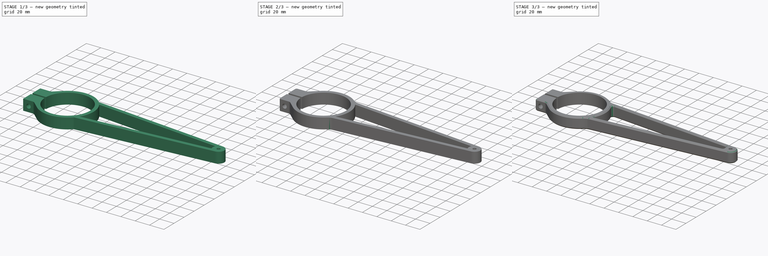
[diagram: build sequence overview — one tinted view per stage of 3, left to right]
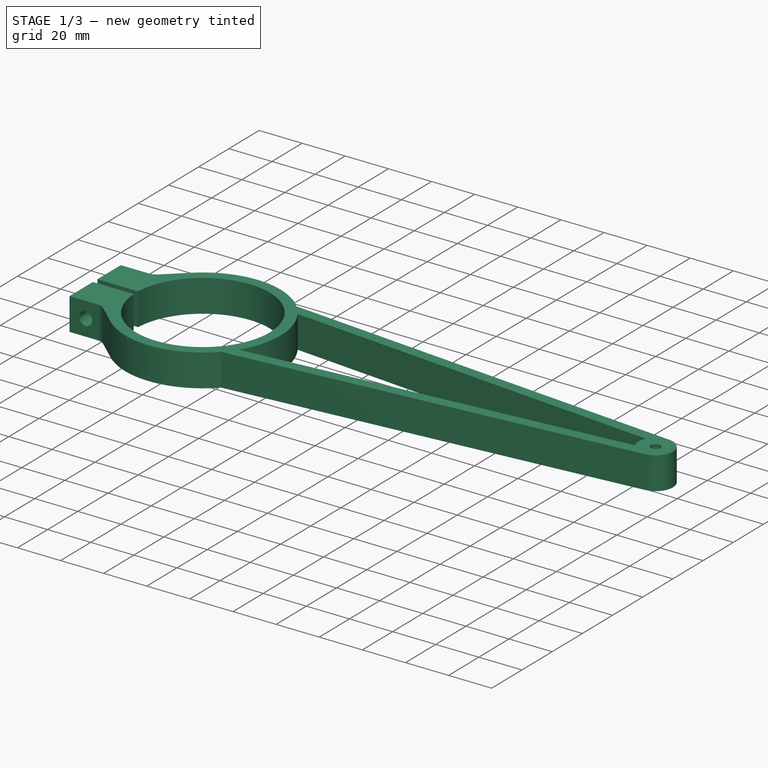
[diagram: stage 1 of 3 — iso view after this stage's code; geometry added in this stage tinted green]
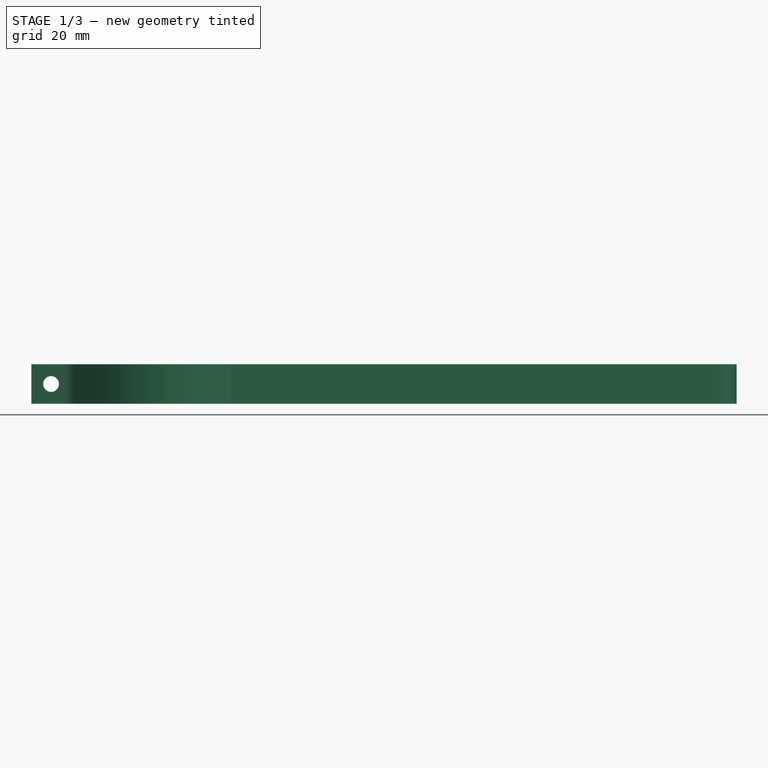
[diagram: stage 1 of 3 — front view after this stage's code; geometry added in this stage tinted green]
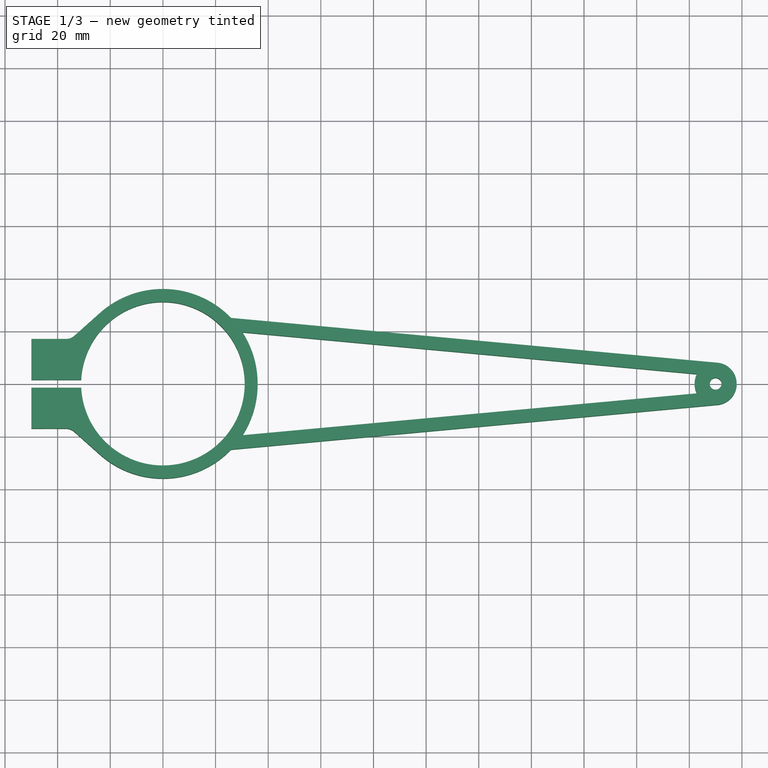
[diagram: stage 1 of 3 — top view after this stage's code; geometry added in this stage tinted green]
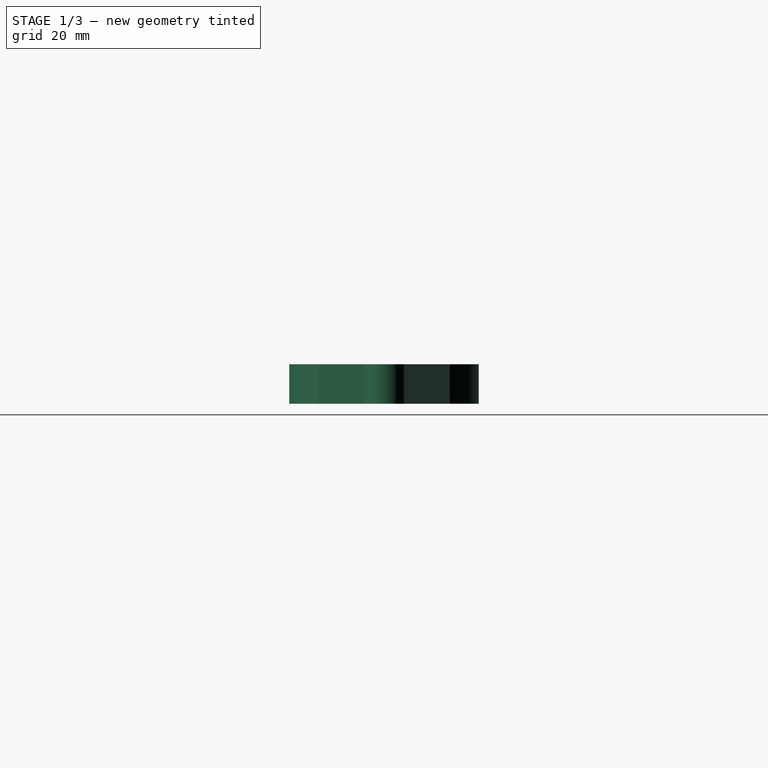
[diagram: stage 1 of 3 — right view after this stage's code; geometry added in this stage tinted green]
FCSTD DOCUMENT  (FreeCAD 0.18R16146 (Git))
Label: vp4003
License: All rights reserved
LicenseURL: http://en.wikipedia.org/wiki/All_rights_reserved
objects: PartDesign::Fillet×5, Sketcher::SketchObject×2, PartDesign::Pad×1, PartDesign::Hole×1, PartDesign::Chamfer×1, PartDesign::Body×1
note: 13 computed .brp shape members not serialized (recipe doc carries the construction recipe); baked Part::Feature solids carry a one-line shape summary decoded from their .brp

FEATURE [Sketcher::SketchObject] Sketch
  MapMode = 5
  Support = -> [XY_Plane]
  sketch-geometry (19):
    g0: ArcOfCircle CenterX=0 CenterY=0 CenterZ=0 NormalX=0 NormalY=0 NormalZ=1 AngleXU=0 Radius=31.075 StartAngle=3.18988 EndAngle=9.37649
    g1: ArcOfCircle CenterX=0 CenterY=0 CenterZ=0 NormalX=0 NormalY=0 NormalZ=1 AngleXU=0 Radius=36 StartAngle=0.767648 EndAngle=2.30023
    g2: ArcOfCircle CenterX=210 CenterY=0 CenterZ=0 NormalX=0 NormalY=0 NormalZ=1 AngleXU=0 Radius=8 StartAngle=2.6653 EndAngle=3.61789
    g3: LineSegment StartX=25.9037 StartY=25 StartZ=0 EndX=210.734 EndY=7.96624 EndZ=0
    g4: LineSegment StartX=25.9037 StartY=-25 StartZ=0 EndX=210.734 EndY=-7.96624 EndZ=0
    g5: LineSegment StartX=30.2083 StartY=19.5821 StartZ=0 EndX=202.89 EndY=3.66792 EndZ=0
    g6: LineSegment StartX=202.89 StartY=-3.66792 StartZ=0 EndX=30.2083 EndY=-19.5821 EndZ=0
    g7: Circle CenterX=210 CenterY=0 CenterZ=0 NormalX=0 NormalY=0 NormalZ=1 AngleXU=0 Radius=2.25
    g8: ArcOfCircle CenterX=210 CenterY=0 CenterZ=0 NormalX=0 NormalY=0 NormalZ=1 AngleXU=0 Radius=8 StartAngle=4.80429 EndAngle=7.76208
    g9: ArcOfCircle CenterX=0 CenterY=0 CenterZ=0 NormalX=0 NormalY=0 NormalZ=1 AngleXU=0 Radius=36 StartAngle=5.70805 EndAngle=6.85832
    g10: LineSegment StartX=-50 StartY=17 StartZ=0 EndX=-50 EndY=1.5 EndZ=0
    g11: ArcOfCircle CenterX=0 CenterY=0 CenterZ=0 NormalX=0 NormalY=0 NormalZ=1 AngleXU=0 Radius=36 StartAngle=3.98296 EndAngle=5.51554
    g12: LineSegment StartX=-50 StartY=1.5 StartZ=0 EndX=-31.0388 EndY=1.5 EndZ=0
    g13: LineSegment StartX=-50 StartY=-1.5 StartZ=0 EndX=-31.0388 EndY=-1.5 EndZ=0
    g14: LineSegment StartX=-50 StartY=-1.5 StartZ=0 EndX=-50 EndY=-17 EndZ=0
    g15: LineSegment StartX=-35 StartY=17 StartZ=0 EndX=-23.992 EndY=26.8399 EndZ=0
    g16: LineSegment StartX=-35 StartY=17 StartZ=0 EndX=-50 EndY=17 EndZ=0
    g17: LineSegment StartX=-23.992 StartY=-26.8399 StartZ=0 EndX=-35 EndY=-17 EndZ=0
    g18: LineSegment StartX=-35 StartY=-17 StartZ=0 EndX=-50 EndY=-17 EndZ=0
  constraints (54):
    c: Coincident(g0,g-1)
    c: Coincident(g1,g0)
    c: PointOnObject(g2,g-1)
    c: DistanceX(g0,g2) = 210
    c: Parallel(g5,g3)
    c: Parallel(g6,g4)
    c: Coincident(g7,g2)
    c: Diameter(g2) = 16
    c: Tangent(g3,g2)
    c: Tangent(g4,g2)
    c: Diameter(g7) = 4.5
    c: Coincident(g2,g5)
    c: Coincident(g8,g3)
    c: Equal(g2,g8)
    c: Coincident(g2,g6)
    c: Coincident(g8,g4)
    c: Coincident(g2,g8)
    c: Distance(g2,g3) = 5
    c: Distance(g2,g4) = 5
    c: Coincident(g1,g3)
    c: Coincident(g9,g0)
    c: Coincident(g9,g6)
    c: Coincident(g9,g5)
    c: Diameter(g0) = 62.15
    c: Diameter(g1) = 72
    c: Equal(g9,g1)
    c: Coincident(g11,g4) = -1.5708
    c: Vertical(g10)
    c: Coincident(g1,g11)
    c: Equal(g11,g9)
    c: Equal(g3,g4)
    c: Horizontal(g12)
    c: Horizontal(g13)
    c: Coincident(g10,g12)
    c: Coincident(g14,g13)
    c: Tangent(g10,g14)
    c: Coincident(g0,g13)
    c: Coincident(g0,g12)
    c: DistanceY(g0,g10) = 1.5
    c: Coincident(g16,g15)
    c: Coincident(g16,g10)
    c: Tangent(g15,g1) = 1.5708
    c: DistanceX(g10,g0) = 50
    c: Horizontal(g16)
    c: DistanceX(g15,g0) = 35
    c: DistanceY(g0,g10) = 17
    c: Coincident(g18,g17)
    c: Coincident(g18,g14)
    c: Horizontal(g18)
    c: Tangent(g17,g11) = 1.5708
    c: Equal(g15,g17)
    c: Equal(g10,g14)
    c: DistanceY(g13,g10) = 3
    c: DistanceY(g4,g1) = 50
FEATURE [PartDesign::Pad] Pad
  Length = 15
  Length2 = 100
  Profile = -> Sketch
  Type = 0
FEATURE [Sketcher::SketchObject] Sketch001
  MapMode = 5
  Placement = pos=(0,-17,0) rot=(1,0,0;1.5708rad)
  Support = -> [Pad]
  sketch-geometry (1):
    g0: Circle CenterX=-42.5 CenterY=7.5 CenterZ=0 NormalX=0 NormalY=0 NormalZ=1 AngleXU=0 Radius=2.5
  constraints (3):
    c: Radius(g0) = 2.5
    c: DistanceY(g-1,g0) = 7.5
    c: DistanceX(g0,g-1) = 42.5
FEATURE [PartDesign::Hole] Hole
  BaseFeature = -> Pad
  Depth = 25
  DepthType = 1
  Diameter = 6
  DrillPoint = 1
  DrillPointAngle = 118
  HoleCutCountersinkAngle = 90
  HoleCutDepth = 0
  HoleCutDiameter = 0
  HoleCutType = 0
  ModelActualThread = false
  Profile = -> Sketch001
  Tapered = false
  TaperedAngle = 90
  ThreadAngle = 0
  ThreadClass = 0
  ThreadCutOffInner = 0
  ThreadCutOffOuter = 0
  ThreadDirection = 0
  ThreadFit = 0
  ThreadPitch = 0
  ThreadSize = 0
  ThreadType = 0
  Threaded = false
FEATURE [PartDesign::Fillet] Fillet
  Base = -> Hole [Edge46,Edge50]
  BaseFeature = -> Hole
  Radius = 5
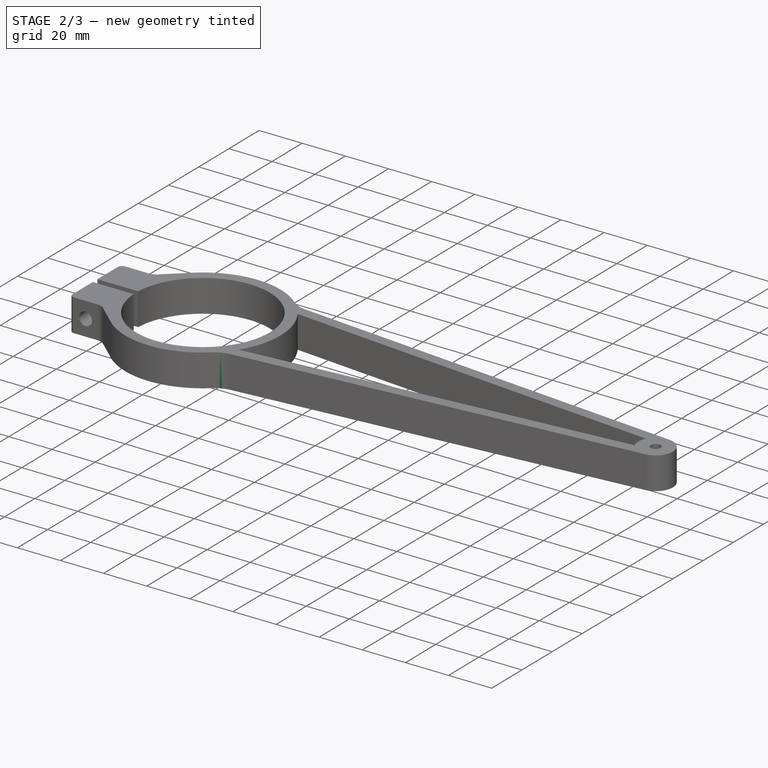
[diagram: stage 2 of 3 — iso view after this stage's code; geometry added in this stage tinted green]
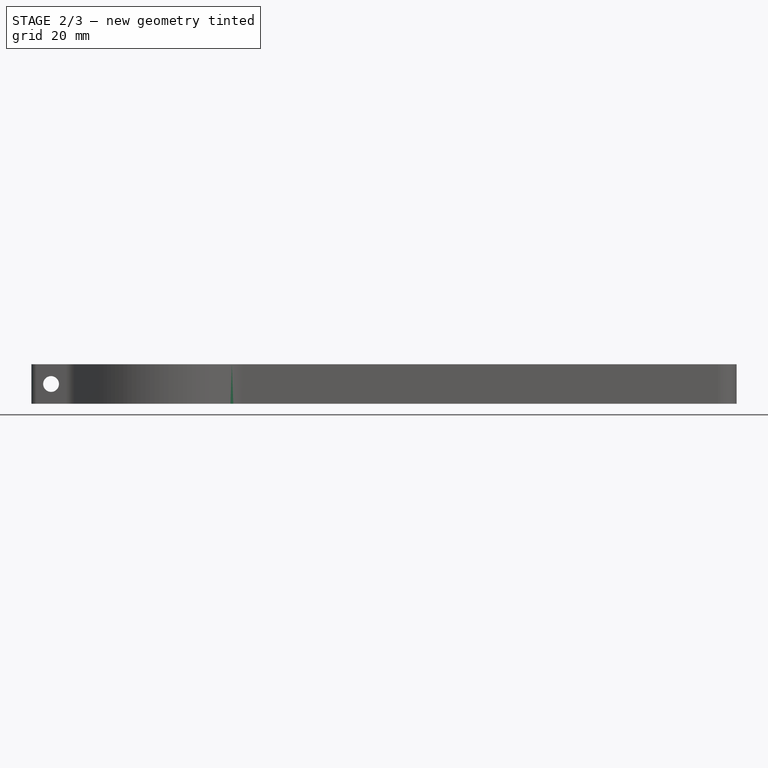
[diagram: stage 2 of 3 — front view after this stage's code; geometry added in this stage tinted green]
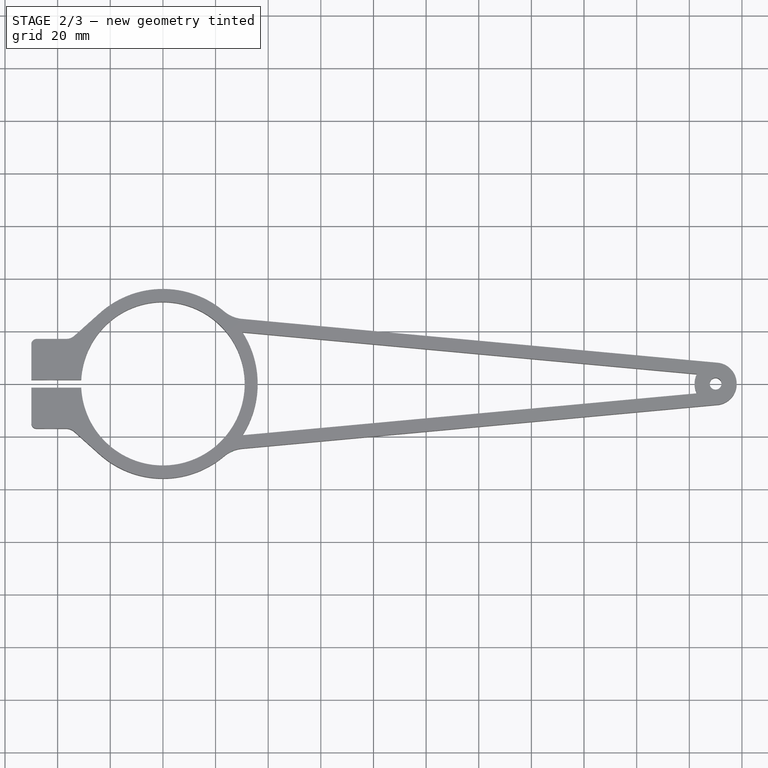
[diagram: stage 2 of 3 — top view after this stage's code; geometry added in this stage tinted green]
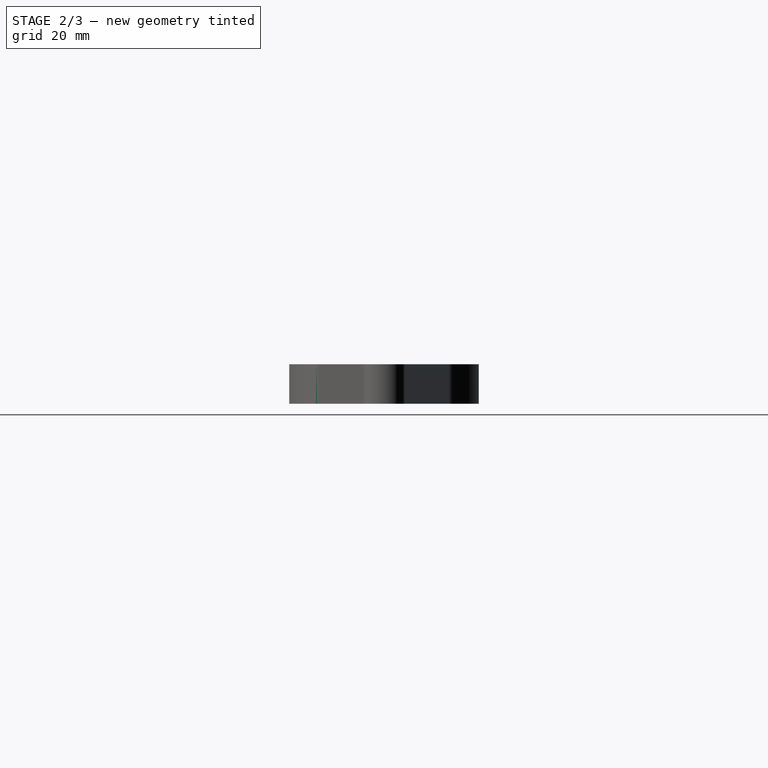
[diagram: stage 2 of 3 — right view after this stage's code; geometry added in this stage tinted green]
FEATURE [PartDesign::Fillet] Fillet001
  Base = -> Fillet [Edge23,Edge46]
  BaseFeature = -> Fillet
  Radius = 2
FEATURE [PartDesign::Fillet] Fillet002
  Base = -> Fillet001 [Edge52,Edge39]
  BaseFeature = -> Fillet001
  Radius = 12.5
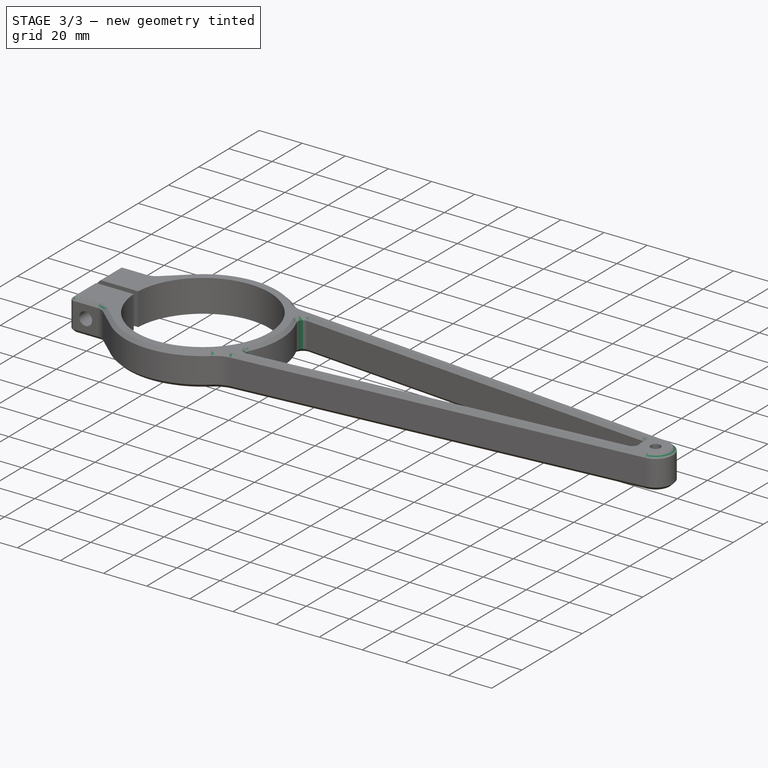
[diagram: stage 3 of 3 — iso view after this stage's code; geometry added in this stage tinted green]
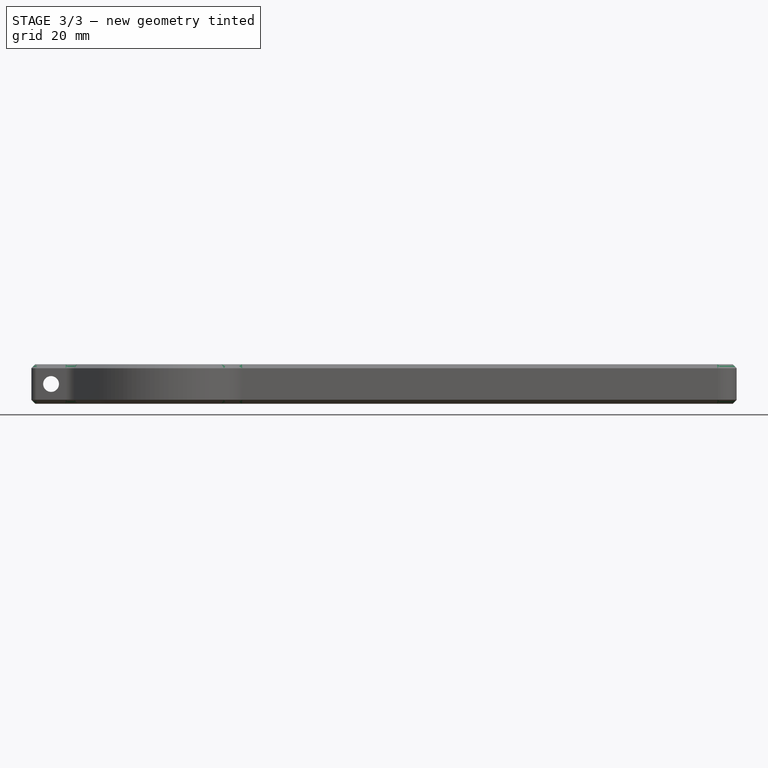
[diagram: stage 3 of 3 — front view after this stage's code; geometry added in this stage tinted green]
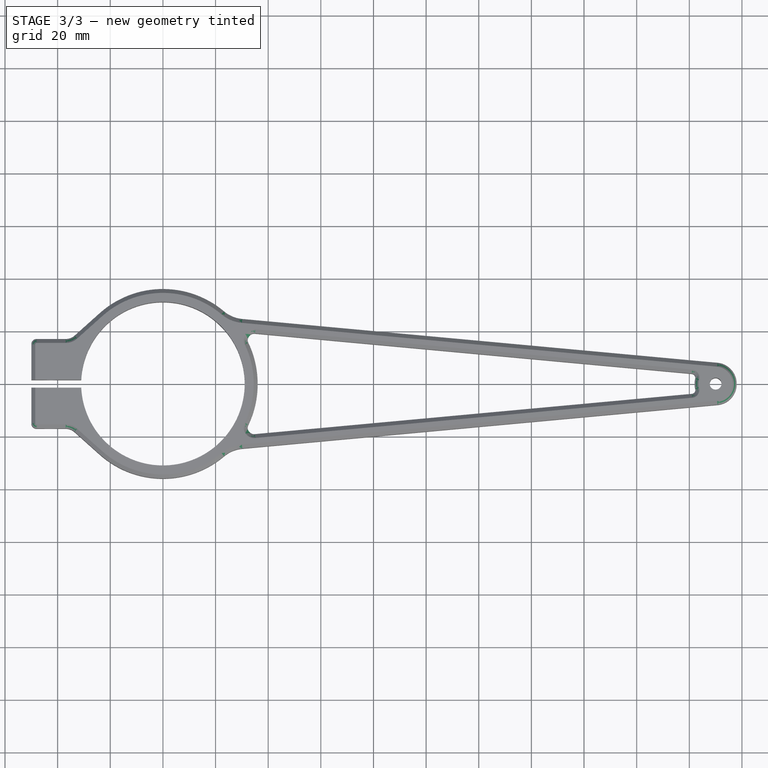
[diagram: stage 3 of 3 — top view after this stage's code; geometry added in this stage tinted green]
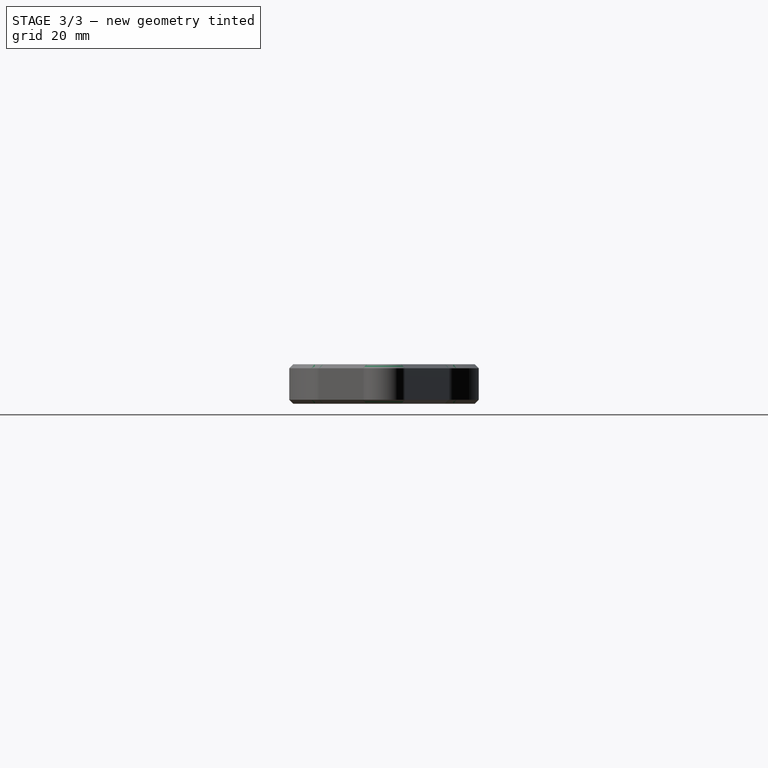
[diagram: stage 3 of 3 — right view after this stage's code; geometry added in this stage tinted green]
FEATURE [PartDesign::Fillet] Fillet003
  Base = -> Fillet002 [Edge73,Edge70]
  BaseFeature = -> Fillet002
  Radius = 2.5
FEATURE [PartDesign::Fillet] Fillet004
  Base = -> Fillet003 [Edge29,Edge33]
  BaseFeature = -> Fillet003
  Radius = 1.5
FEATURE [PartDesign::Chamfer] Chamfer
  Base = -> Fillet004 [Edge54,Edge12,Edge32,Edge1]
  BaseFeature = -> Fillet004
  Size = 1.5
FEATURE [PartDesign::Body] Body
  Group = -> [Sketch,Pad,Sketch001,Hole,Fillet,Fillet001,Fillet002,Fillet003,Fillet004,Chamfer]
  Origin = -> Origin
  Tip = -> Chamfer
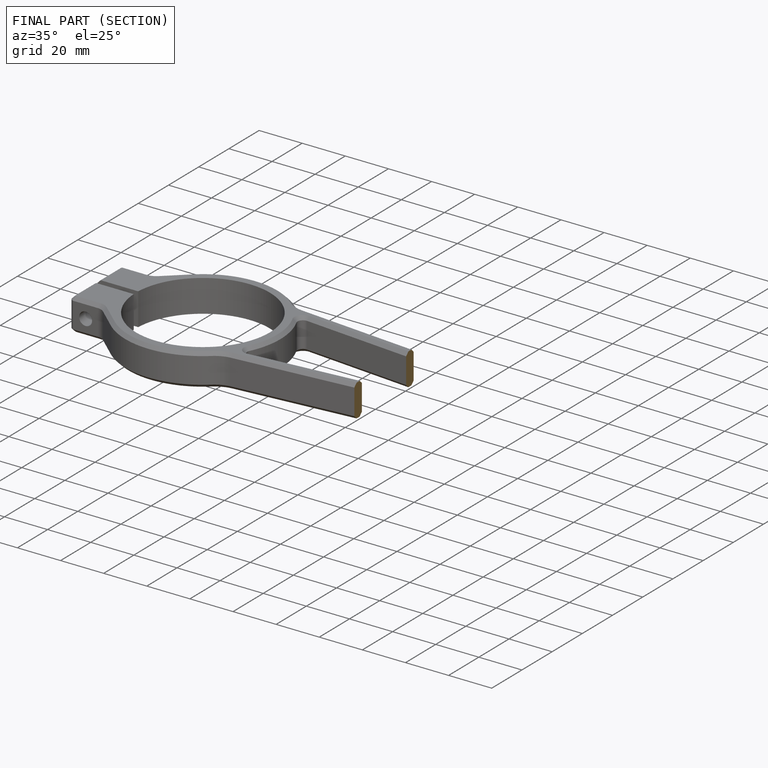
[diagram: finished part — half-section view (interior)]
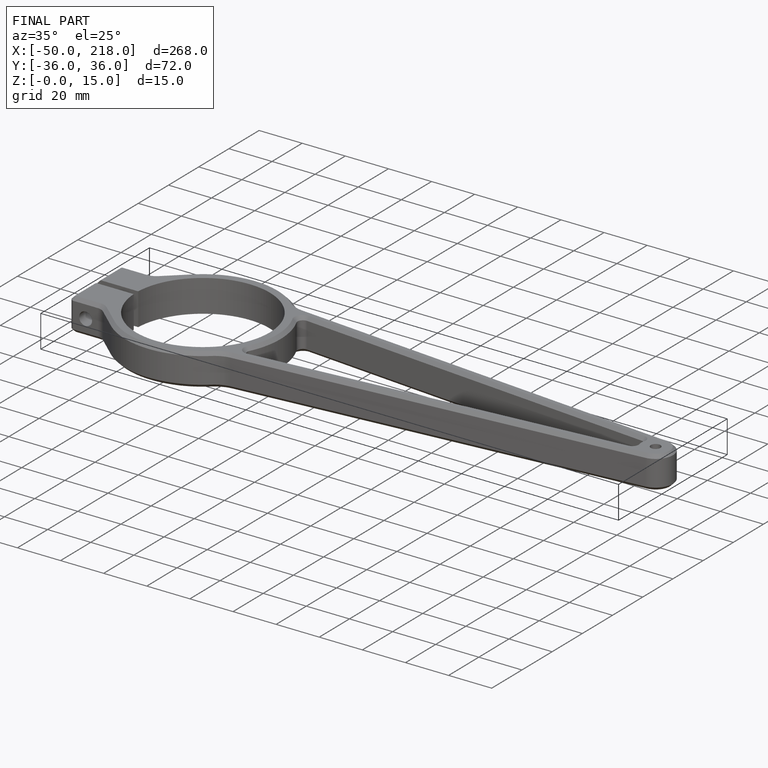
[diagram: finished part — iso view with bounding-box wireframe]
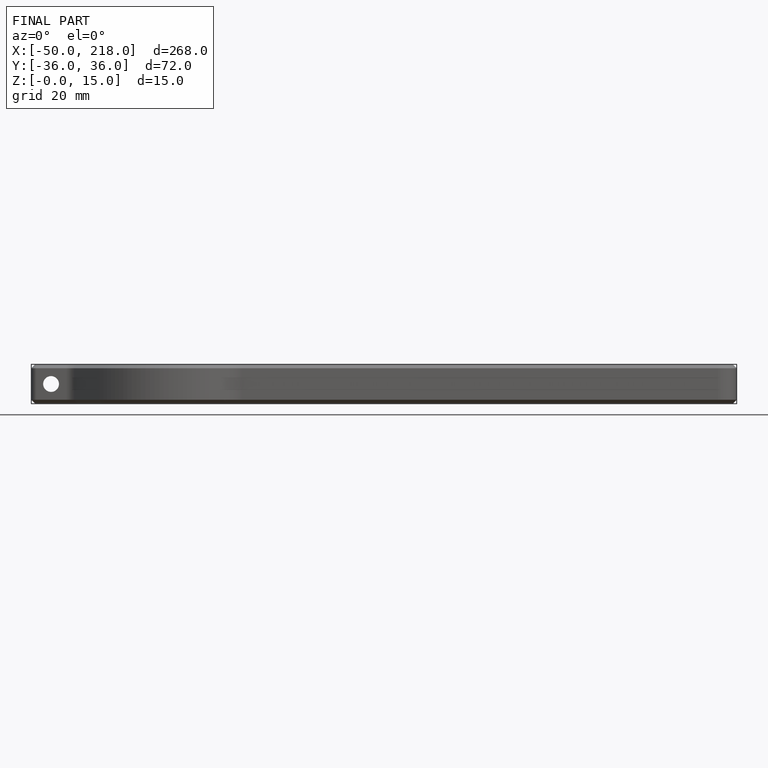
[diagram: finished part — front view with bounding-box wireframe]
